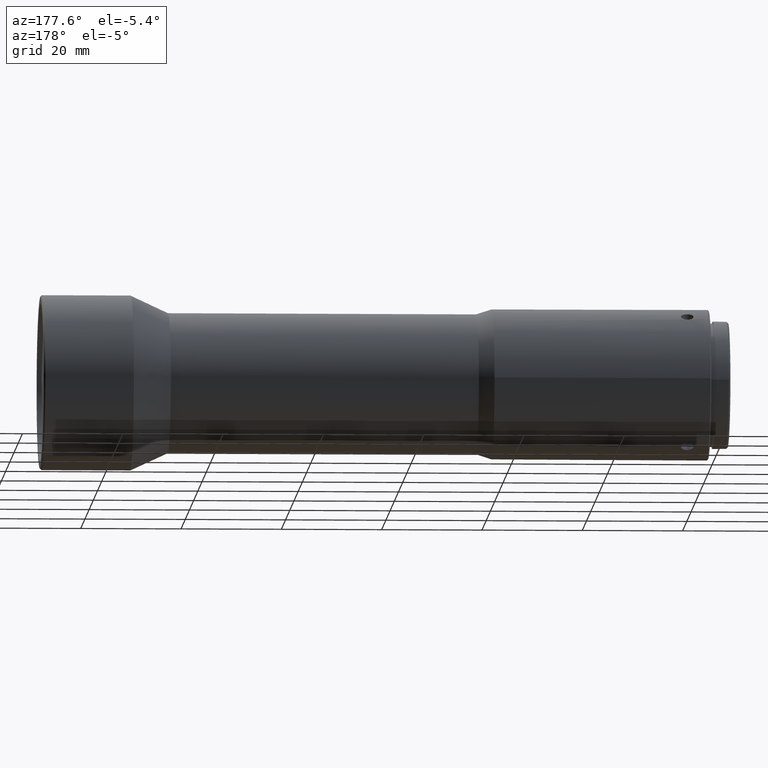
[diagram: clean part render]
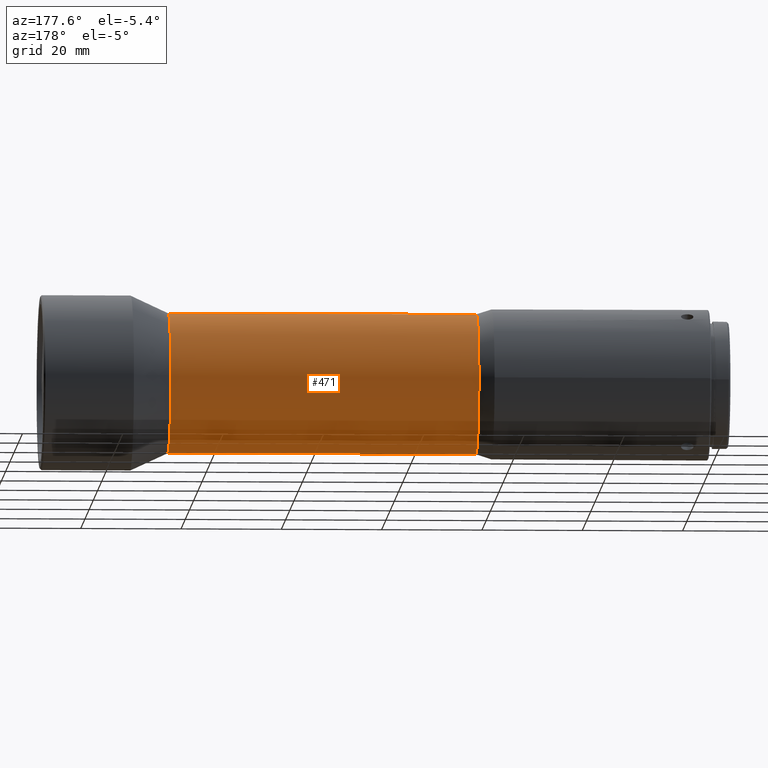
[diagram: same view with one face highlighted and labeled with its STEP entity id]
A machine part, auxiliary view. The second image highlights one B-rep face of the part: STEP entity #471.
In plain terms, the highlighted cylindrical surface (partial cylindrical patch) has radius 14 mm, axis along (-1, 0, -0).
Its self-contained STEP definition (entity closure, byte-faithful):
#61 = EDGE_CURVE ( 'NONE', #1513, #1274, #250, .T. ) ;
#159 = CYLINDRICAL_SURFACE ( 'NONE', #321, 14.00000000000000000 ) ;
#166 = FACE_OUTER_BOUND ( 'NONE', #1301, .T. ) ;
#196 = VECTOR ( 'NONE', #798, 1000.000000000000000 ) ;
#200 = LINE ( 'NONE', #510, #196 ) ;
#208 = VECTOR ( 'NONE', #1119, 1000.000000000000000 ) ;
#212 = LINE ( 'NONE', #1102, #208 ) ;
#226 = CIRCLE ( 'NONE', #346, 14.00000000000000000 ) ;
#250 = CIRCLE ( 'NONE', #355, 14.00000000000000000 ) ;
#321 = AXIS2_PLACEMENT_3D ( 'NONE', #529, #575, #531 ) ;
#346 = AXIS2_PLACEMENT_3D ( 'NONE', #756, #854, #866 ) ;
#355 = AXIS2_PLACEMENT_3D ( 'NONE', #595, #596, #597 ) ;
#382 = EDGE_CURVE ( 'NONE', #1182, #1199, #226, .T. ) ;
#427 = EDGE_CURVE ( 'NONE', #1513, #1182, #212, .T. ) ;
#453 = EDGE_CURVE ( 'NONE', #1274, #1199, #200, .T. ) ;
#471 = ADVANCED_FACE ( 'NONE', ( #166 ), #159, .T. ) ;
#510 = CARTESIAN_POINT ( 'NONE',  ( 6.800000000000000700, 1.714505518806294600E-015, -14.00000000000000000 ) ) ;
#529 = CARTESIAN_POINT ( 'NONE',  ( 6.799999999999999800, 0.0000000000000000000, 0.0000000000000000000 ) ) ;
#531 = DIRECTION ( 'NONE',  ( -6.195440985631454100E-017, 0.0000000000000000000, 1.000000000000000000 ) ) ;
#575 = DIRECTION ( 'NONE',  ( -1.000000000000000000, 0.0000000000000000000, -3.097720492815727700E-017 ) ) ;
#595 = CARTESIAN_POINT ( 'NONE',  ( 6.799999999999917200, 0.0000000000000000000, 0.0000000000000000000 ) ) ;
#596 = DIRECTION ( 'NONE',  ( -1.000000000000000000, -0.0000000000000000000, -0.0000000000000000000 ) ) ;
#597 = DIRECTION ( 'NONE',  ( 5.885668936349880900E-015, 1.000000000000000000, 0.0000000000000000000 ) ) ;
#650 = CARTESIAN_POINT ( 'NONE',  ( 6.799999999999917200, 0.0000000000000000000, 14.00000000000000200 ) ) ;
#678 = CARTESIAN_POINT ( 'NONE',  ( 6.799999999999917200, 1.714505518806294600E-015, -14.00000000000000000 ) ) ;
#721 = CARTESIAN_POINT ( 'NONE',  ( -54.62231646300000400, 1.775737858763662000E-015, -14.00000000000000000 ) ) ;
#738 = CARTESIAN_POINT ( 'NONE',  ( -54.62231646300000400, 0.0000000000000000000, 14.00000000000000000 ) ) ;
#756 = CARTESIAN_POINT ( 'NONE',  ( -54.62231646300000400, 0.0000000000000000000, 0.0000000000000000000 ) ) ;
#798 = DIRECTION ( 'NONE',  ( -1.000000000000000000, 0.0000000000000000000, -3.097720492815727700E-017 ) ) ;
#854 = DIRECTION ( 'NONE',  ( -1.000000000000000000, 0.0000000000000000000, 0.0000000000000000000 ) ) ;
#866 = DIRECTION ( 'NONE',  ( 0.0000000000000000000, -1.000000000000000000, 0.0000000000000000000 ) ) ;
#1102 = CARTESIAN_POINT ( 'NONE',  ( 6.799999999999998900, 0.0000000000000000000, 14.00000000000000000 ) ) ;
#1119 = DIRECTION ( 'NONE',  ( -1.000000000000000000, 0.0000000000000000000, -3.097720492815727700E-017 ) ) ;
#1182 = VERTEX_POINT ( 'NONE', #738 ) ;
#1199 = VERTEX_POINT ( 'NONE', #721 ) ;
#1274 = VERTEX_POINT ( 'NONE', #678 ) ;
#1301 = EDGE_LOOP ( 'NONE', ( #1413, #1372, #1368, #1458 ) ) ;
#1368 = ORIENTED_EDGE ( 'NONE', *, *, #382, .F. ) ;
#1372 = ORIENTED_EDGE ( 'NONE', *, *, #453, .T. ) ;
#1413 = ORIENTED_EDGE ( 'NONE', *, *, #61, .T. ) ;
#1458 = ORIENTED_EDGE ( 'NONE', *, *, #427, .F. ) ;
#1513 = VERTEX_POINT ( 'NONE', #650 ) ;